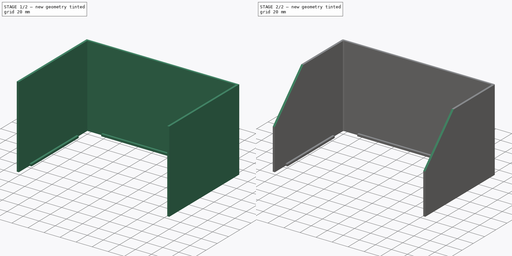
[diagram: build sequence overview — one tinted view per stage of 2, left to right]
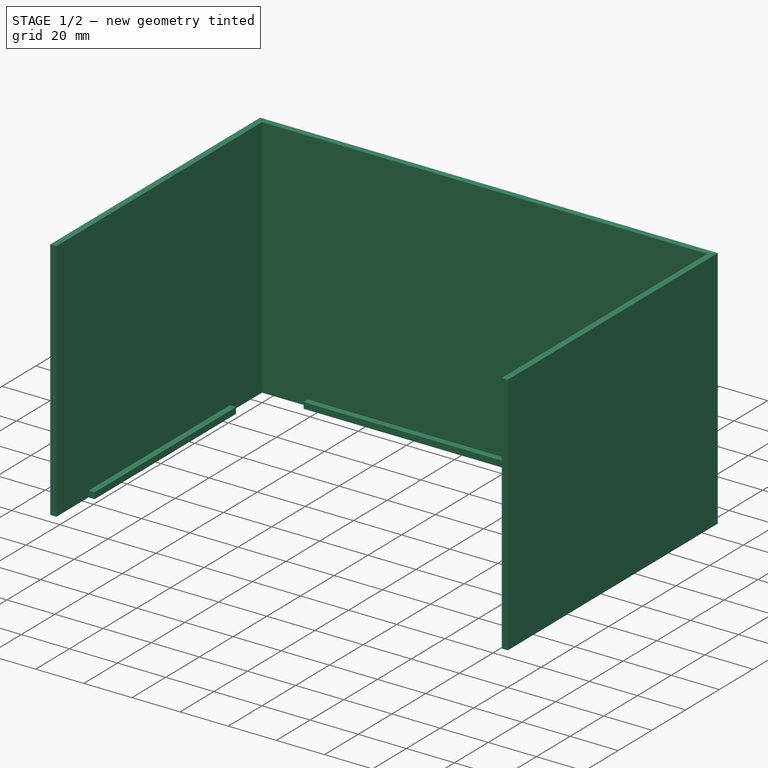
[diagram: stage 1 of 2 — iso view after this stage's code; geometry added in this stage tinted green]
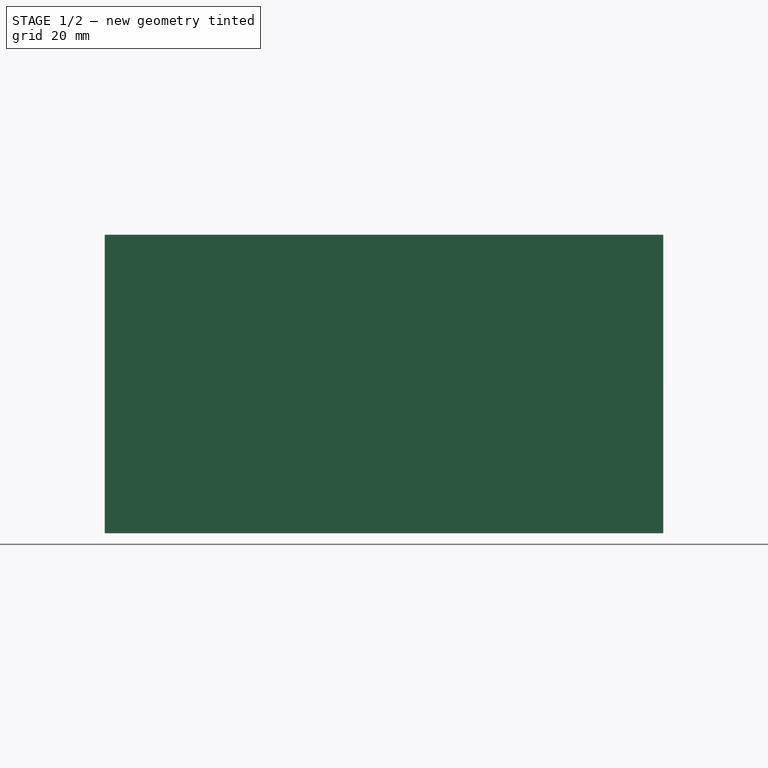
[diagram: stage 1 of 2 — front view after this stage's code; geometry added in this stage tinted green]
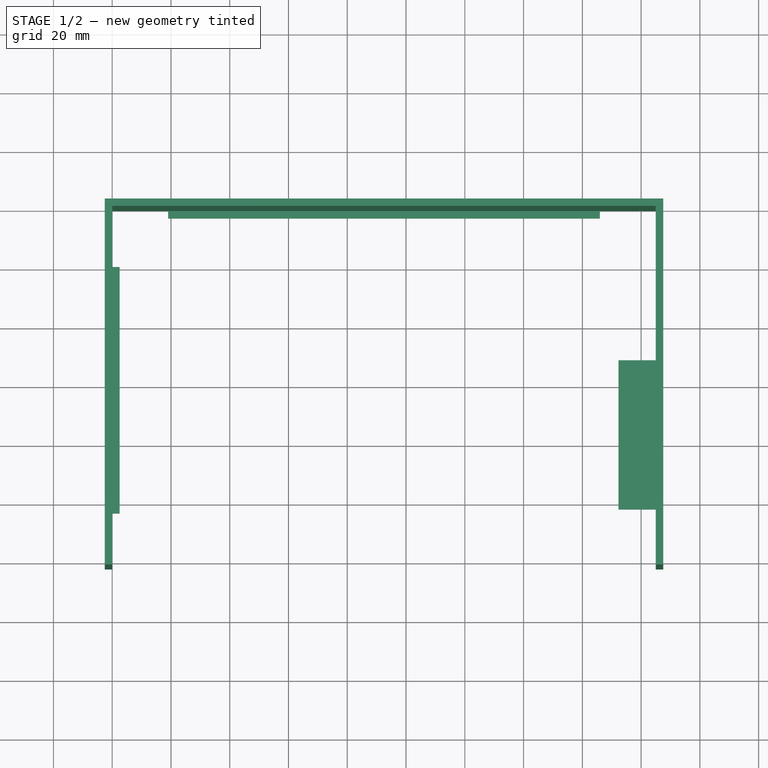
[diagram: stage 1 of 2 — top view after this stage's code; geometry added in this stage tinted green]
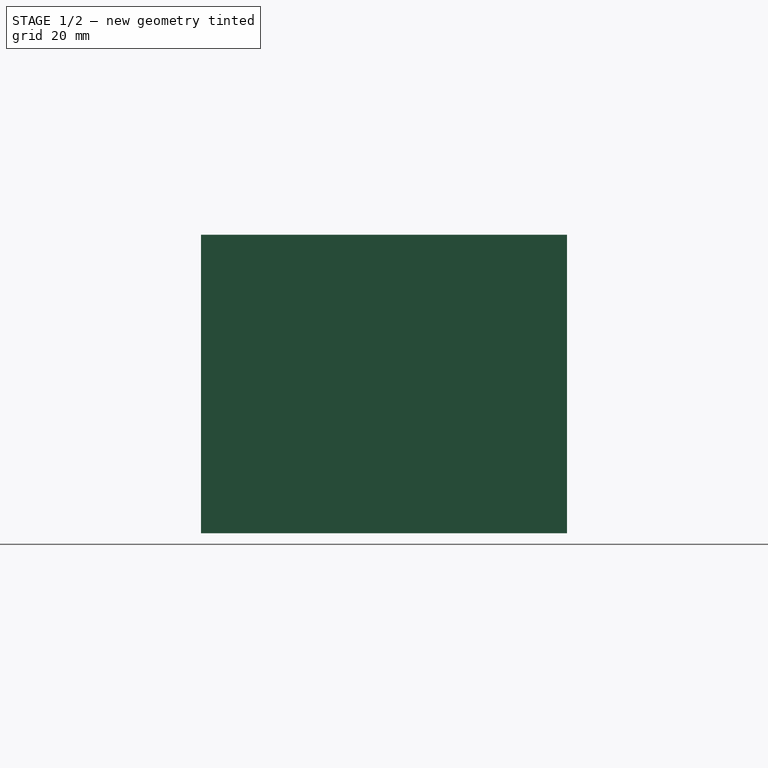
[diagram: stage 1 of 2 — right view after this stage's code; geometry added in this stage tinted green]
FCSTD DOCUMENT  (FreeCAD 0.21R31917 (Git))
Label: lilliput monitor shade
License: All rights reserved
LicenseURL: http://en.wikipedia.org/wiki/All_rights_reserved
objects: Sketcher::SketchObject×2, PartDesign::Pad×2, PartDesign::Chamfer×1, PartDesign::Fillet×1, PartDesign::Body×1
note: 11 computed .brp shape members not serialized (recipe doc carries the construction recipe); baked Part::Feature solids carry a one-line shape summary decoded from their .brp

FEATURE [Sketcher::SketchObject] Sketch
  FullyConstrained = true
  MapMode = 5
  Support = -> [XY_Plane]
  sketch-geometry (9):
    g0: LineSegment StartX=-2.54 StartY=2.54 StartZ=0 EndX=-2.54 EndY=-121.996 EndZ=0
    g1: LineSegment StartX=-2.54 StartY=-121.996 StartZ=0 EndX=0 EndY=-121.996 EndZ=0
    g2: LineSegment StartX=0 StartY=-121.996 StartZ=0 EndX=0 EndY=0 EndZ=0
    g3: LineSegment StartX=0 StartY=0 StartZ=0 EndX=185 EndY=0 EndZ=0
    g4: LineSegment StartX=185 StartY=0 StartZ=0 EndX=185 EndY=-121.996 EndZ=0
    g5: LineSegment StartX=185 StartY=-121.996 StartZ=0 EndX=187.54 EndY=-121.996 EndZ=0
    g6: LineSegment StartX=187.54 StartY=-121.996 StartZ=0 EndX=187.54 EndY=2.54 EndZ=0
    g7: LineSegment StartX=187.54 StartY=2.54 StartZ=0 EndX=-2.54 EndY=2.54 EndZ=0
    g8: LineSegment StartX=0 StartY=0 StartZ=0 EndX=0 EndY=2.54 EndZ=0
  constraints (26):
    c: Vertical(g0)
    c: Coincident(g0,g1)
    c: Horizontal(g1)
    c: Coincident(g1,g2)
    c: Vertical(g2)
    c: Coincident(g2,g3)
    c: Horizontal(g3)
    c: Coincident(g3,g4)
    c: Vertical(g4)
    c: Coincident(g4,g5)
    c: Horizontal(g5)
    c: Coincident(g5,g6)
    c: Vertical(g6)
    c: Coincident(g6,g7)
    c: Coincident(g7,g0)
    c: Horizontal(g7)
    c: Coincident(g8,g2)
    c: Vertical(g8)
    c: PointOnObject(g8,g7)
    c: Equal(g8,g1)
    c: Equal(g1,g5)
    c: DistanceX(g4,g5) = 2.54  'WallThickness'
    c: DistanceX(g1,g4) = 185  'MonitorWidth'
    c: DistanceY(g4,g3) = 121.996  'MonitorHeight'
    c: Equal(g4,g2)
    c: Coincident(g-1,g2)  'FixOrigin'
FEATURE [PartDesign::Pad] Pad
  Direction = (0,0,1)
  Length = 101.6
  Length2 = 10
  Profile = -> Sketch
  ReferenceAxis = -> Sketch [N_Axis]
  Type = 0
FEATURE [Sketcher::SketchObject] Sketch001
  FullyConstrained = true
  MapMode = 5
  Support = -> [XY_Plane]
  expr: Constraints[17] = <<Sketch>>.Constraints.MonitorWidth
  expr: Constraints[26] = Sketch.Constraints.MonitorHeight
  expr: Constraints[40] = Sketch.Constraints.MonitorWidth
  sketch-geometry (14):
    g0: LineSegment StartX=0 StartY=-19.05 StartZ=0 EndX=2.54 EndY=-19.05 EndZ=0
    g1: LineSegment StartX=2.54 StartY=-19.05 StartZ=0 EndX=2.54 EndY=-102.946 EndZ=0
    g2: LineSegment StartX=2.54 StartY=-102.946 StartZ=0 EndX=0 EndY=-102.946 EndZ=0
    g3: LineSegment StartX=0 StartY=-102.946 StartZ=0 EndX=0 EndY=-19.05 EndZ=0
    g4: LineSegment StartX=185 StartY=-50.8 StartZ=0 EndX=172.3 EndY=-50.8 EndZ=0
    g5: LineSegment StartX=172.3 StartY=-50.8 StartZ=0 EndX=172.3 EndY=-101.6 EndZ=0
    g6: LineSegment StartX=172.3 StartY=-101.6 StartZ=0 EndX=185 EndY=-101.6 EndZ=0
    g7: LineSegment StartX=185 StartY=-101.6 StartZ=0 EndX=185 EndY=-50.8 EndZ=0
    g8: LineSegment StartX=0 StartY=-102.946 StartZ=0 EndX=0 EndY=-121.996 EndZ=0
    g9: LineSegment StartX=19.05 StartY=0 StartZ=0 EndX=165.95 EndY=0 EndZ=0
    g10: LineSegment StartX=165.95 StartY=0 StartZ=0 EndX=165.95 EndY=-2.54 EndZ=0
    g11: LineSegment StartX=165.95 StartY=-2.54 StartZ=0 EndX=19.05 EndY=-2.54 EndZ=0
    g12: LineSegment StartX=19.05 StartY=-2.54 StartZ=0 EndX=19.05 EndY=0 EndZ=0
    g13: LineSegment StartX=165.95 StartY=0 StartZ=0 EndX=185 EndY=0 EndZ=0
  constraints (42):
    c: Coincident(g0,g1)
    c: Coincident(g1,g2)
    c: Coincident(g2,g3)
    c: Coincident(g3,g0)
    c: Horizontal(g0)
    c: Horizontal(g2)
    c: Vertical(g1)
    c: Vertical(g3)
    c: PointOnObject(g0,g-2)
    c: Coincident(g4,g5)
    c: Coincident(g5,g6)
    c: Coincident(g6,g7)
    c: Coincident(g7,g4)
    c: Horizontal(g4)
    c: Horizontal(g6)
    c: Vertical(g5)
    c: Vertical(g7)
    c: DistanceX(g-1,g4) = 185
    c: DistanceY(g4,g-1) = 50.8
    c: DistanceY(g5,g-1) = 101.6
    c: DistanceX(g5,g6) = 12.7
    c: DistanceX(g2,g1) = 2.54
    c: DistanceY(g0,g-1) = 19.05
    c: Coincident(g8,g2)
    c: PointOnObject(g8,g-2)
    c: DistanceY(g8,g2) = 19.05
    c: DistanceY(g8,g-1) = 121.996
    c: Coincident(g9,g10)
    c: Coincident(g10,g11)
    c: Coincident(g11,g12)
    c: Coincident(g12,g9)
    c: Horizontal(g9)
    c: Horizontal(g11)
    c: Vertical(g10)
    c: Vertical(g12)
    c: PointOnObject(g9,g-1)
    c: Equal(g12,g2)
    c: Coincident(g13,g9)
    c: PointOnObject(g13,g-1)
    c: Equal(g8,g13)
    c: DistanceX(g-1,g13) = 185
    c: DistanceX(g-1,g9) = 19.05
FEATURE [PartDesign::Pad] Pad001
  BaseFeature = -> Pad
  Direction = (0,0,1)
  Length = 2.54
  Length2 = 10
  Profile = -> Sketch001
  ReferenceAxis = -> Sketch001 [N_Axis]
  Type = 0
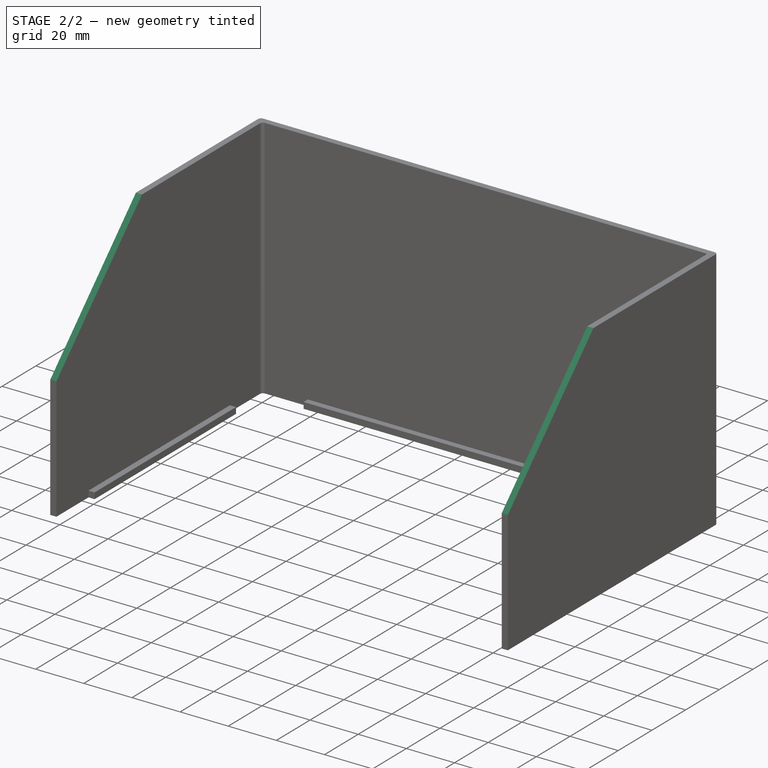
[diagram: stage 2 of 2 — iso view after this stage's code; geometry added in this stage tinted green]
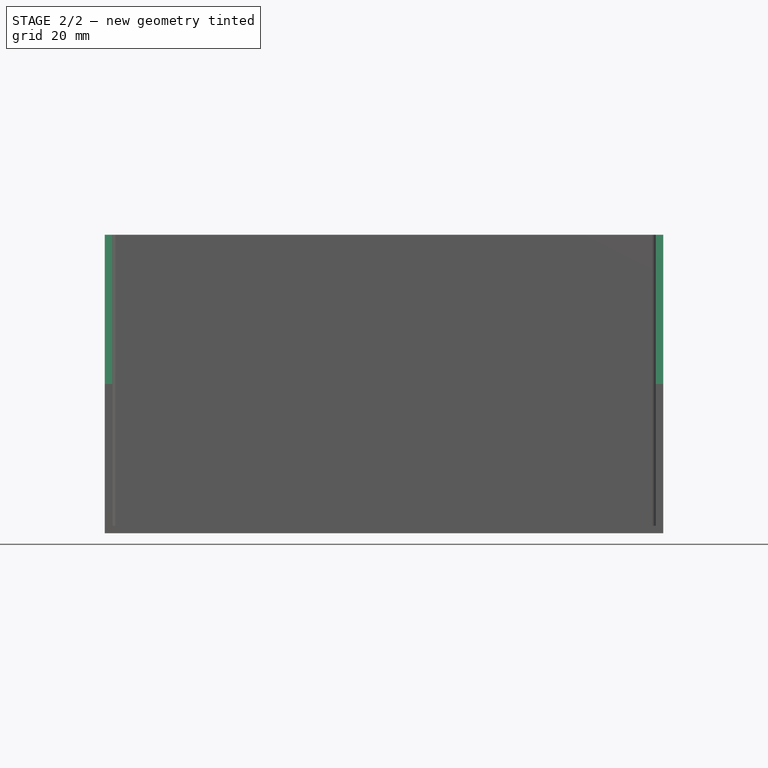
[diagram: stage 2 of 2 — front view after this stage's code; geometry added in this stage tinted green]
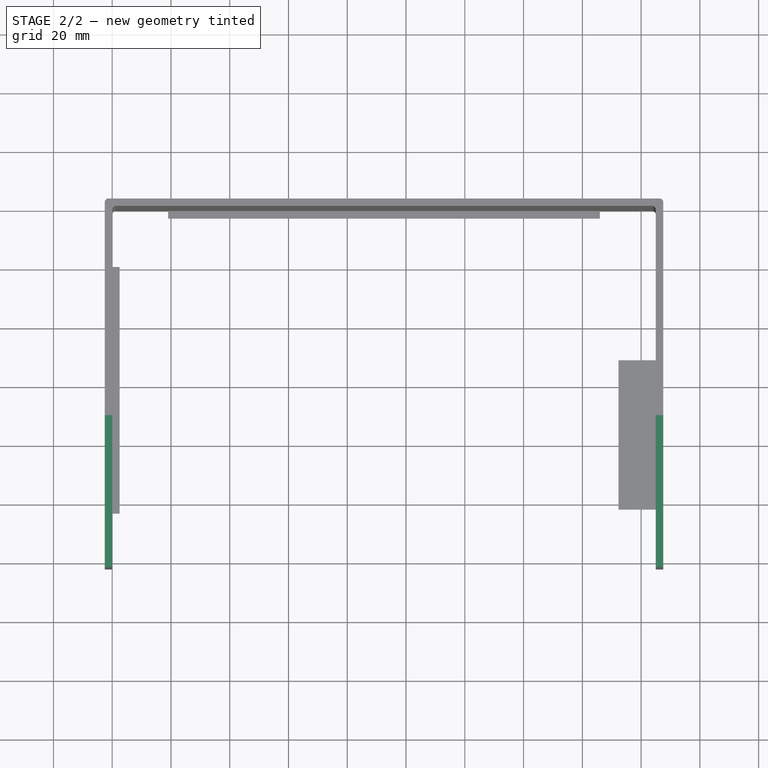
[diagram: stage 2 of 2 — top view after this stage's code; geometry added in this stage tinted green]
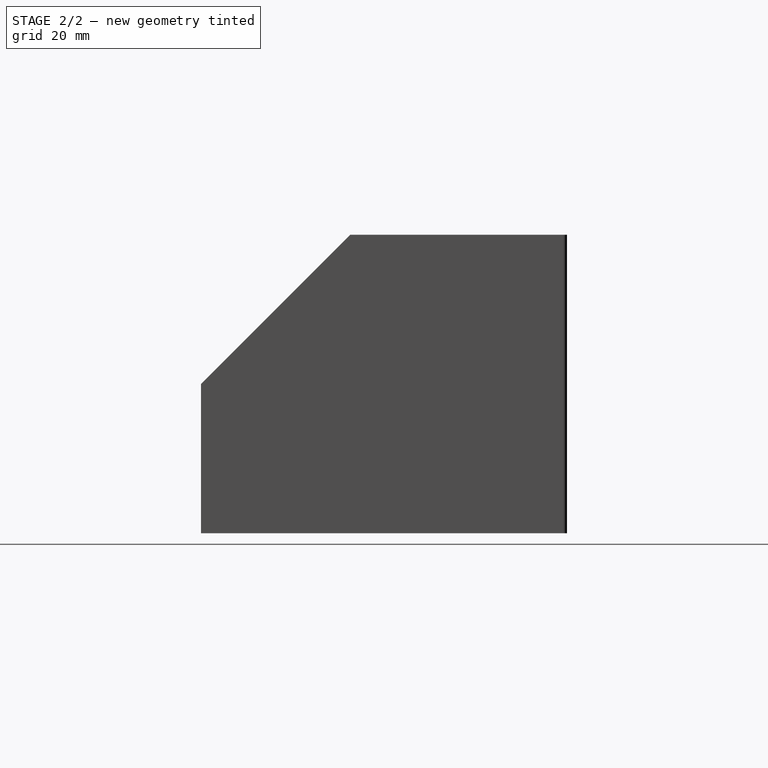
[diagram: stage 2 of 2 — right view after this stage's code; geometry added in this stage tinted green]
FEATURE [PartDesign::Chamfer] Chamfer
  Angle = 45
  Base = -> Pad001 [Edge10,Edge25]
  BaseFeature = -> Pad001
  ChamferType = 0
  FlipDirection = false
  Size = 50.8
  Size2 = 1
  SupportTransform = false
  UseAllEdges = false
FEATURE [PartDesign::Fillet] Fillet
  Base = -> Chamfer [Edge40,Edge30,Edge5,Edge29]
  BaseFeature = -> Chamfer
  Radius = 1.27
  SupportTransform = false
  UseAllEdges = false
FEATURE [PartDesign::Body] Body
  Group = -> [Sketch,Pad,Sketch001,Pad001,Chamfer,Fillet]
  Origin = -> Origin
  Tip = -> Fillet
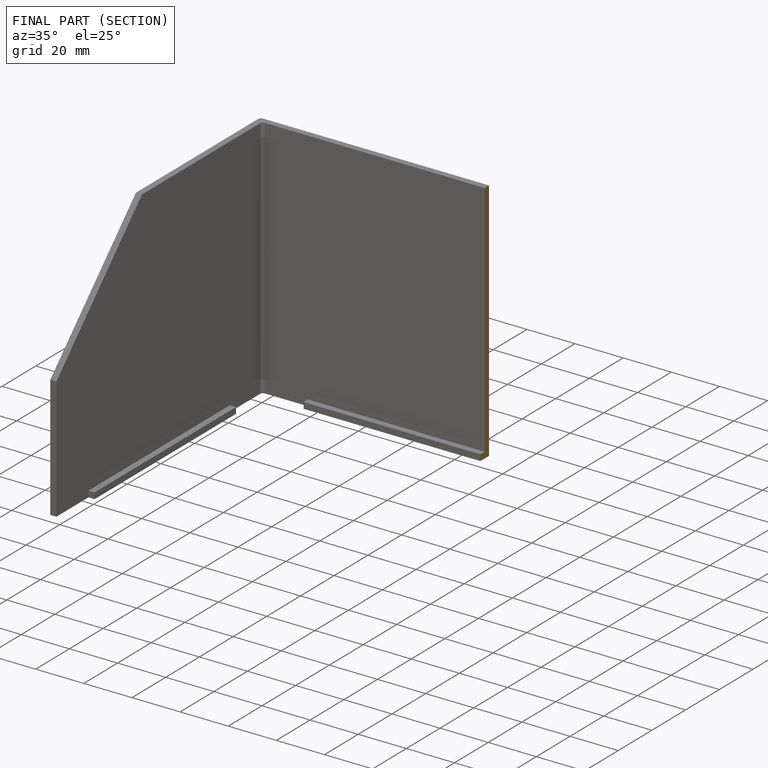
[diagram: finished part — half-section view (interior)]
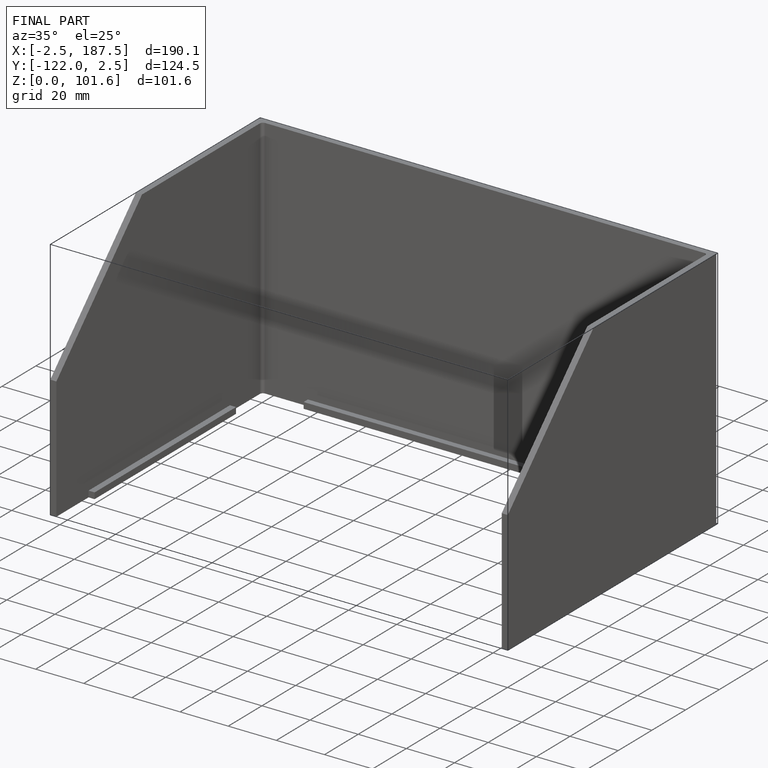
[diagram: finished part — iso view with bounding-box wireframe]
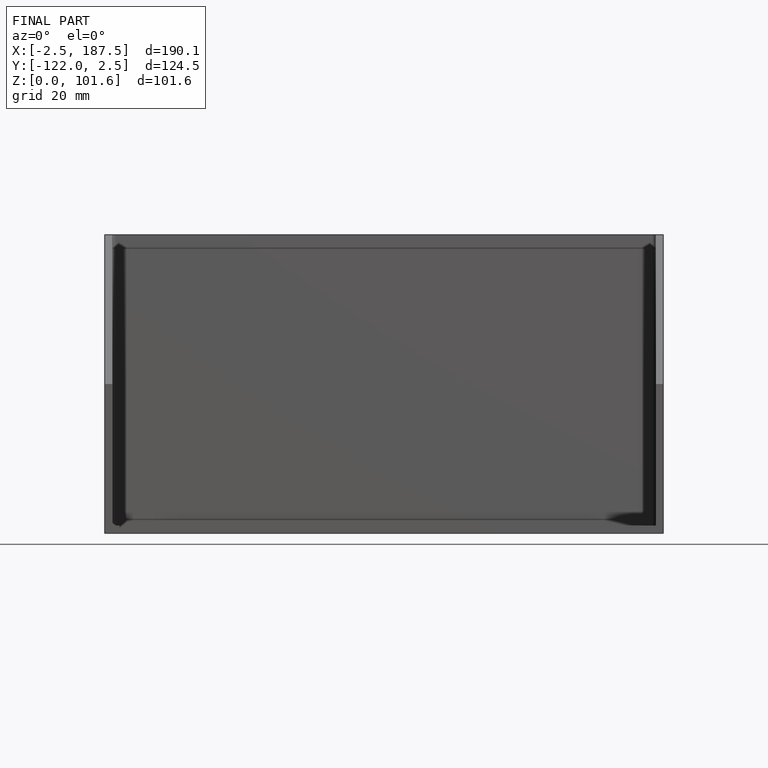
[diagram: finished part — front view with bounding-box wireframe]
